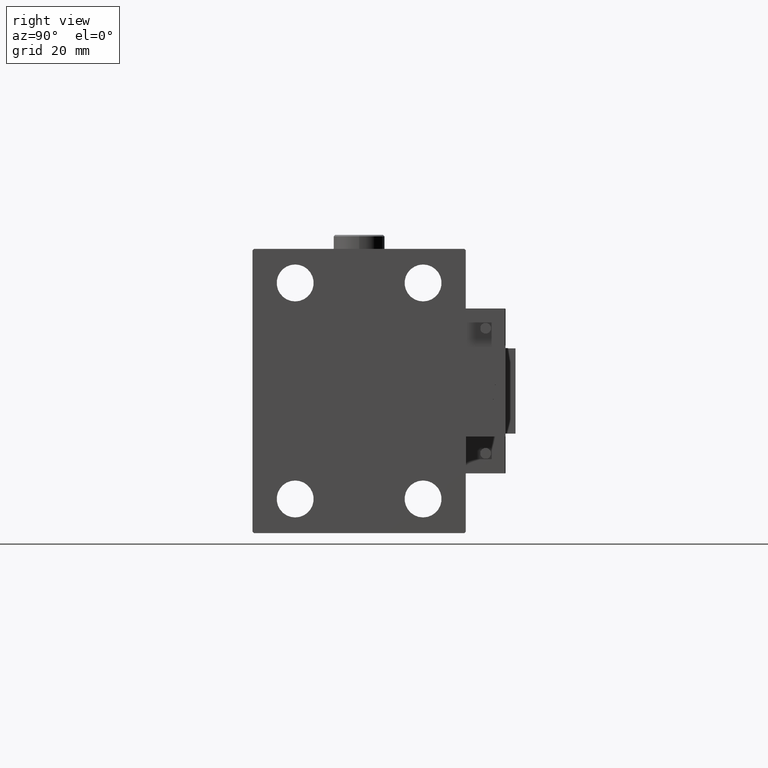
[diagram: clean part render]
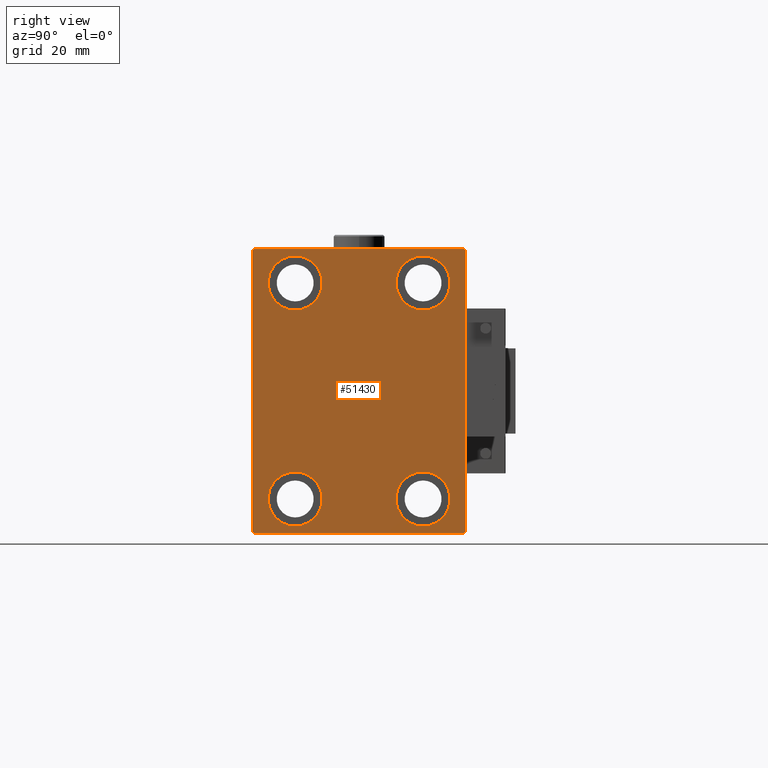
[diagram: same view with one face highlighted and labeled with its STEP entity id]
A machine part, right view. The second image highlights one B-rep face of the part: STEP entity #51430.
In plain terms, the highlighted planar face has unit normal (1, 0, 0).
Its self-contained STEP definition (entity closure, byte-faithful):
#92 = EDGE_CURVE ( 'NONE', #14904, #43955, #49883, .T. ) ;
#775 = ORIENTED_EDGE ( 'NONE', *, *, #45488, .T. ) ;
#1489 = CARTESIAN_POINT ( 'NONE',  ( 103.0000000000000000, -22.49999999999999645, 28.49999999999998934 ) ) ;
#1614 = PLANE ( 'NONE',  #23186 ) ;
#1774 = VERTEX_POINT ( 'NONE', #14590 ) ;
#2607 = AXIS2_PLACEMENT_3D ( 'NONE', #37839, #46461, #5732 ) ;
#2803 = AXIS2_PLACEMENT_3D ( 'NONE', #22909, #44461, #27475 ) ;
#2844 = ORIENTED_EDGE ( 'NONE', *, *, #16539, .T. ) ;
#3668 = CARTESIAN_POINT ( 'NONE',  ( 103.0000000000000000, 37.49999999999999289, 50.00000000000000711 ) ) ;
#3708 = DIRECTION ( 'NONE',  ( -1.000000000000000000, -0.000000000000000000, -0.000000000000000000 ) ) ;
#3750 = VERTEX_POINT ( 'NONE', #40003 ) ;
#4203 = VECTOR ( 'NONE', #22986, 1000.000000000000000 ) ;
#5046 = EDGE_LOOP ( 'NONE', ( #8013, #12357 ) ) ;
#5333 = CARTESIAN_POINT ( 'NONE',  ( 103.0000000000000000, 22.49999999999999645, -28.49999999999998934 ) ) ;
#5732 = DIRECTION ( 'NONE',  ( 0.000000000000000000, 0.000000000000000000, 1.000000000000000000 ) ) ;
#6196 = FACE_BOUND ( 'NONE', #50633, .T. ) ;
#6520 = CARTESIAN_POINT ( 'NONE',  ( 103.0000000000000000, -37.50000000000000711, -50.00000000000000711 ) ) ;
#6543 = ORIENTED_EDGE ( 'NONE', *, *, #14224, .T. ) ;
#7046 = CARTESIAN_POINT ( 'NONE',  ( 103.0000000000000000, 37.50000000000000711, -49.50000000000001421 ) ) ;
#7317 = CARTESIAN_POINT ( 'NONE',  ( 103.0000000000000000, -22.50000000000000711, -37.99999999999999289 ) ) ;
#7466 = EDGE_CURVE ( 'NONE', #19817, #31301, #50160, .T. ) ;
#7505 = DIRECTION ( 'NONE',  ( 0.000000000000000000, 0.000000000000000000, 1.000000000000000000 ) ) ;
#8013 = ORIENTED_EDGE ( 'NONE', *, *, #38363, .T. ) ;
#9290 = DIRECTION ( 'NONE',  ( -1.000000000000000000, -0.000000000000000000, -0.000000000000000000 ) ) ;
#10236 = FACE_BOUND ( 'NONE', #36337, .T. ) ;
#10319 = CIRCLE ( 'NONE', #33575, 9.500000000000001776 ) ;
#10518 = FACE_BOUND ( 'NONE', #5046, .T. ) ;
#10578 = LINE ( 'NONE', #6520, #4203 ) ;
#10763 = VECTOR ( 'NONE', #31453, 1000.000000000000000 ) ;
#10878 = ORIENTED_EDGE ( 'NONE', *, *, #52752, .T. ) ;
#11049 = DIRECTION ( 'NONE',  ( 1.000000000000000000, 0.000000000000000000, 0.000000000000000000 ) ) ;
#11160 = EDGE_CURVE ( 'NONE', #37738, #15888, #18380, .T. ) ;
#11201 = ORIENTED_EDGE ( 'NONE', *, *, #52798, .T. ) ;
#11244 = CIRCLE ( 'NONE', #2607, 9.500000000000001776 ) ;
#11392 = CARTESIAN_POINT ( 'NONE',  ( 103.0000000000000000, 22.50000000000000355, 47.49999999999999289 ) ) ;
#11616 = VECTOR ( 'NONE', #31652, 1000.000000000000114 ) ;
#11817 = ORIENTED_EDGE ( 'NONE', *, *, #49187, .T. ) ;
#12302 = DIRECTION ( 'NONE',  ( 0.000000000000000000, 0.000000000000000000, 1.000000000000000000 ) ) ;
#12357 = ORIENTED_EDGE ( 'NONE', *, *, #7466, .T. ) ;
#12442 = DIRECTION ( 'NONE',  ( -0.000000000000000000, 0.7071067811865474617, -0.7071067811865474617 ) ) ;
#12604 = DIRECTION ( 'NONE',  ( 0.000000000000000000, 0.000000000000000000, 1.000000000000000000 ) ) ;
#13531 = EDGE_LOOP ( 'NONE', ( #25664, #47826 ) ) ;
#13822 = CARTESIAN_POINT ( 'NONE',  ( 103.0000000000000000, -37.50000000000000711, 49.99999999999999289 ) ) ;
#14224 = EDGE_CURVE ( 'NONE', #44549, #37738, #51408, .T. ) ;
#14590 = CARTESIAN_POINT ( 'NONE',  ( 103.0000000000000000, -36.99999999999999289, 49.99999999999999289 ) ) ;
#14728 = DIRECTION ( 'NONE',  ( 0.000000000000000000, -1.387778780781445676E-16, 1.000000000000000000 ) ) ;
#14904 = VERTEX_POINT ( 'NONE', #31026 ) ;
#15195 = CARTESIAN_POINT ( 'NONE',  ( 103.0000000000000000, -43.49999999999998579, 43.49999999999998579 ) ) ;
#15830 = EDGE_CURVE ( 'NONE', #1774, #47886, #52681, .T. ) ;
#15888 = VERTEX_POINT ( 'NONE', #40535 ) ;
#16010 = CARTESIAN_POINT ( 'NONE',  ( 103.0000000000000000, 43.49999999999950262, -43.50000000000070344 ) ) ;
#16363 = DIRECTION ( 'NONE',  ( 0.000000000000000000, 0.000000000000000000, 1.000000000000000000 ) ) ;
#16372 = CARTESIAN_POINT ( 'NONE',  ( 103.0000000000000000, -22.50000000000000711, -37.99999999999999289 ) ) ;
#16539 = EDGE_CURVE ( 'NONE', #15888, #1774, #20382, .T. ) ;
#16655 = CIRCLE ( 'NONE', #39044, 9.500000000000001776 ) ;
#16891 = AXIS2_PLACEMENT_3D ( 'NONE', #45723, #9290, #12302 ) ;
#18023 = ORIENTED_EDGE ( 'NONE', *, *, #50058, .T. ) ;
#18380 = LINE ( 'NONE', #51289, #41675 ) ;
#18850 = CARTESIAN_POINT ( 'NONE',  ( 103.0000000000000000, 22.50000000000000355, 37.99999999999999289 ) ) ;
#19202 = DIRECTION ( 'NONE',  ( 0.000000000000000000, 0.000000000000000000, 1.000000000000000000 ) ) ;
#19651 = CIRCLE ( 'NONE', #28267, 9.500000000000001776 ) ;
#19817 = VERTEX_POINT ( 'NONE', #44982 ) ;
#20152 = CARTESIAN_POINT ( 'NONE',  ( 103.0000000000000000, 22.49999999999999645, -37.99999999999999289 ) ) ;
#20255 = CARTESIAN_POINT ( 'NONE',  ( 103.0000000000000000, 37.00000000000000711, -50.00000000000000000 ) ) ;
#20382 = LINE ( 'NONE', #3668, #10763 ) ;
#20523 = LINE ( 'NONE', #33188, #45804 ) ;
#20680 = DIRECTION ( 'NONE',  ( -1.000000000000000000, -0.000000000000000000, -0.000000000000000000 ) ) ;
#22556 = AXIS2_PLACEMENT_3D ( 'NONE', #7317, #48847, #19202 ) ;
#22909 = CARTESIAN_POINT ( 'NONE',  ( 103.0000000000000000, -22.49999999999999645, 37.99999999999999289 ) ) ;
#22986 = DIRECTION ( 'NONE',  ( 0.000000000000000000, 1.000000000000000000, 9.251858538542970348E-17 ) ) ;
#23186 = AXIS2_PLACEMENT_3D ( 'NONE', #51503, #11049, #27489 ) ;
#24003 = CARTESIAN_POINT ( 'NONE',  ( 103.0000000000000000, -37.50000000000000711, 49.49999999999997868 ) ) ;
#24382 = LINE ( 'NONE', #16010, #41347 ) ;
#24638 = DIRECTION ( 'NONE',  ( -0.000000000000000000, 0.7071067811865573427, 0.7071067811865378028 ) ) ;
#25449 = VERTEX_POINT ( 'NONE', #44177 ) ;
#25664 = ORIENTED_EDGE ( 'NONE', *, *, #48362, .T. ) ;
#26586 = VERTEX_POINT ( 'NONE', #11392 ) ;
#26861 = ORIENTED_EDGE ( 'NONE', *, *, #15830, .T. ) ;
#26968 = FACE_BOUND ( 'NONE', #13531, .T. ) ;
#27475 = DIRECTION ( 'NONE',  ( 0.000000000000000000, 0.000000000000000000, 1.000000000000000000 ) ) ;
#27489 = DIRECTION ( 'NONE',  ( 0.000000000000000000, 0.000000000000000000, -1.000000000000000000 ) ) ;
#27911 = VERTEX_POINT ( 'NONE', #34735 ) ;
#28078 = DIRECTION ( 'NONE',  ( -1.000000000000000000, -0.000000000000000000, -0.000000000000000000 ) ) ;
#28267 = AXIS2_PLACEMENT_3D ( 'NONE', #18850, #43928, #7505 ) ;
#28340 = CARTESIAN_POINT ( 'NONE',  ( 103.0000000000000000, 37.49999999999999289, 49.50000000000000000 ) ) ;
#28354 = AXIS2_PLACEMENT_3D ( 'NONE', #20152, #20680, #16363 ) ;
#28917 = EDGE_CURVE ( 'NONE', #43955, #14904, #49621, .T. ) ;
#31026 = CARTESIAN_POINT ( 'NONE',  ( 103.0000000000000000, 22.49999999999999645, -47.49999999999999289 ) ) ;
#31301 = VERTEX_POINT ( 'NONE', #1489 ) ;
#31453 = DIRECTION ( 'NONE',  ( 0.000000000000000000, -1.000000000000000000, -1.850371707708594316E-16 ) ) ;
#31652 = DIRECTION ( 'NONE',  ( 0.000000000000000000, -0.7071067811865474617, -0.7071067811865474617 ) ) ;
#33188 = CARTESIAN_POINT ( 'NONE',  ( 103.0000000000000000, -43.50000000000000000, -43.50000000000000000 ) ) ;
#33575 = AXIS2_PLACEMENT_3D ( 'NONE', #49102, #28078, #48321 ) ;
#33602 = ORIENTED_EDGE ( 'NONE', *, *, #28917, .T. ) ;
#34735 = CARTESIAN_POINT ( 'NONE',  ( 103.0000000000000000, 22.50000000000000355, 28.49999999999998934 ) ) ;
#35478 = CIRCLE ( 'NONE', #22556, 9.500000000000001776 ) ;
#36337 = EDGE_LOOP ( 'NONE', ( #11201, #11817 ) ) ;
#36528 = CARTESIAN_POINT ( 'NONE',  ( 103.0000000000000000, -36.99999999999999289, -50.00000000000000711 ) ) ;
#36779 = VERTEX_POINT ( 'NONE', #36528 ) ;
#37738 = VERTEX_POINT ( 'NONE', #28340 ) ;
#37839 = CARTESIAN_POINT ( 'NONE',  ( 103.0000000000000000, -22.49999999999999645, 37.99999999999999289 ) ) ;
#37898 = VECTOR ( 'NONE', #51297, 1000.000000000000000 ) ;
#38363 = EDGE_CURVE ( 'NONE', #31301, #19817, #11244, .T. ) ;
#38385 = ORIENTED_EDGE ( 'NONE', *, *, #52581, .T. ) ;
#39044 = AXIS2_PLACEMENT_3D ( 'NONE', #16372, #3708, #12604 ) ;
#40003 = CARTESIAN_POINT ( 'NONE',  ( 103.0000000000000000, -22.50000000000000711, -47.49999999999999289 ) ) ;
#40519 = EDGE_LOOP ( 'NONE', ( #2844, #26861, #10878, #775, #18023, #38385, #6543, #43335 ) ) ;
#40535 = CARTESIAN_POINT ( 'NONE',  ( 103.0000000000000000, 36.99999999999997868, 50.00000000000000711 ) ) ;
#41347 = VECTOR ( 'NONE', #24638, 1000.000000000000000 ) ;
#41675 = VECTOR ( 'NONE', #47236, 1000.000000000000000 ) ;
#42010 = CARTESIAN_POINT ( 'NONE',  ( 103.0000000000000000, -37.50000000000000711, -49.49999999999999289 ) ) ;
#43318 = CARTESIAN_POINT ( 'NONE',  ( 103.0000000000000000, 37.50000000000000711, -50.00000000000000000 ) ) ;
#43335 = ORIENTED_EDGE ( 'NONE', *, *, #11160, .T. ) ;
#43928 = DIRECTION ( 'NONE',  ( -1.000000000000000000, -0.000000000000000000, -0.000000000000000000 ) ) ;
#43955 = VERTEX_POINT ( 'NONE', #5333 ) ;
#44177 = CARTESIAN_POINT ( 'NONE',  ( 103.0000000000000000, -22.50000000000000711, -28.49999999999998934 ) ) ;
#44461 = DIRECTION ( 'NONE',  ( -1.000000000000000000, -0.000000000000000000, -0.000000000000000000 ) ) ;
#44549 = VERTEX_POINT ( 'NONE', #7046 ) ;
#44982 = CARTESIAN_POINT ( 'NONE',  ( 103.0000000000000000, -22.49999999999999645, 47.49999999999999289 ) ) ;
#45424 = EDGE_CURVE ( 'NONE', #25449, #3750, #35478, .T. ) ;
#45488 = EDGE_CURVE ( 'NONE', #53350, #36779, #20523, .T. ) ;
#45723 = CARTESIAN_POINT ( 'NONE',  ( 103.0000000000000000, 22.49999999999999645, -37.99999999999999289 ) ) ;
#45804 = VECTOR ( 'NONE', #12442, 1000.000000000000114 ) ;
#46461 = DIRECTION ( 'NONE',  ( -1.000000000000000000, -0.000000000000000000, -0.000000000000000000 ) ) ;
#47236 = DIRECTION ( 'NONE',  ( -0.000000000000000000, -0.7071067811865524577, 0.7071067811865426878 ) ) ;
#47826 = ORIENTED_EDGE ( 'NONE', *, *, #45424, .T. ) ;
#47872 = ORIENTED_EDGE ( 'NONE', *, *, #92, .T. ) ;
#47886 = VERTEX_POINT ( 'NONE', #24003 ) ;
#47997 = FACE_OUTER_BOUND ( 'NONE', #40519, .T. ) ;
#48321 = DIRECTION ( 'NONE',  ( 0.000000000000000000, 0.000000000000000000, 1.000000000000000000 ) ) ;
#48362 = EDGE_CURVE ( 'NONE', #3750, #25449, #16655, .T. ) ;
#48847 = DIRECTION ( 'NONE',  ( -1.000000000000000000, -0.000000000000000000, -0.000000000000000000 ) ) ;
#49102 = CARTESIAN_POINT ( 'NONE',  ( 103.0000000000000000, 22.50000000000000355, 37.99999999999999289 ) ) ;
#49187 = EDGE_CURVE ( 'NONE', #26586, #27911, #19651, .T. ) ;
#49621 = CIRCLE ( 'NONE', #16891, 9.500000000000001776 ) ;
#49883 = CIRCLE ( 'NONE', #28354, 9.500000000000001776 ) ;
#50058 = EDGE_CURVE ( 'NONE', #36779, #52854, #10578, .T. ) ;
#50160 = CIRCLE ( 'NONE', #2803, 9.500000000000001776 ) ;
#50633 = EDGE_LOOP ( 'NONE', ( #47872, #33602 ) ) ;
#51289 = CARTESIAN_POINT ( 'NONE',  ( 103.0000000000000000, 43.49999999999972999, 43.50000000000033396 ) ) ;
#51297 = DIRECTION ( 'NONE',  ( 0.000000000000000000, 0.000000000000000000, -1.000000000000000000 ) ) ;
#51408 = LINE ( 'NONE', #43318, #52831 ) ;
#51430 = ADVANCED_FACE ( 'NONE', ( #6196, #10518, #10236, #26968, #47997 ), #1614, .T. ) ;
#51503 = CARTESIAN_POINT ( 'NONE',  ( 103.0000000000000000, 0.000000000000000000, 0.000000000000000000 ) ) ;
#51555 = LINE ( 'NONE', #13822, #37898 ) ;
#52581 = EDGE_CURVE ( 'NONE', #52854, #44549, #24382, .T. ) ;
#52681 = LINE ( 'NONE', #15195, #11616 ) ;
#52752 = EDGE_CURVE ( 'NONE', #47886, #53350, #51555, .T. ) ;
#52798 = EDGE_CURVE ( 'NONE', #27911, #26586, #10319, .T. ) ;
#52831 = VECTOR ( 'NONE', #14728, 1000.000000000000000 ) ;
#52854 = VERTEX_POINT ( 'NONE', #20255 ) ;
#53350 = VERTEX_POINT ( 'NONE', #42010 ) ;